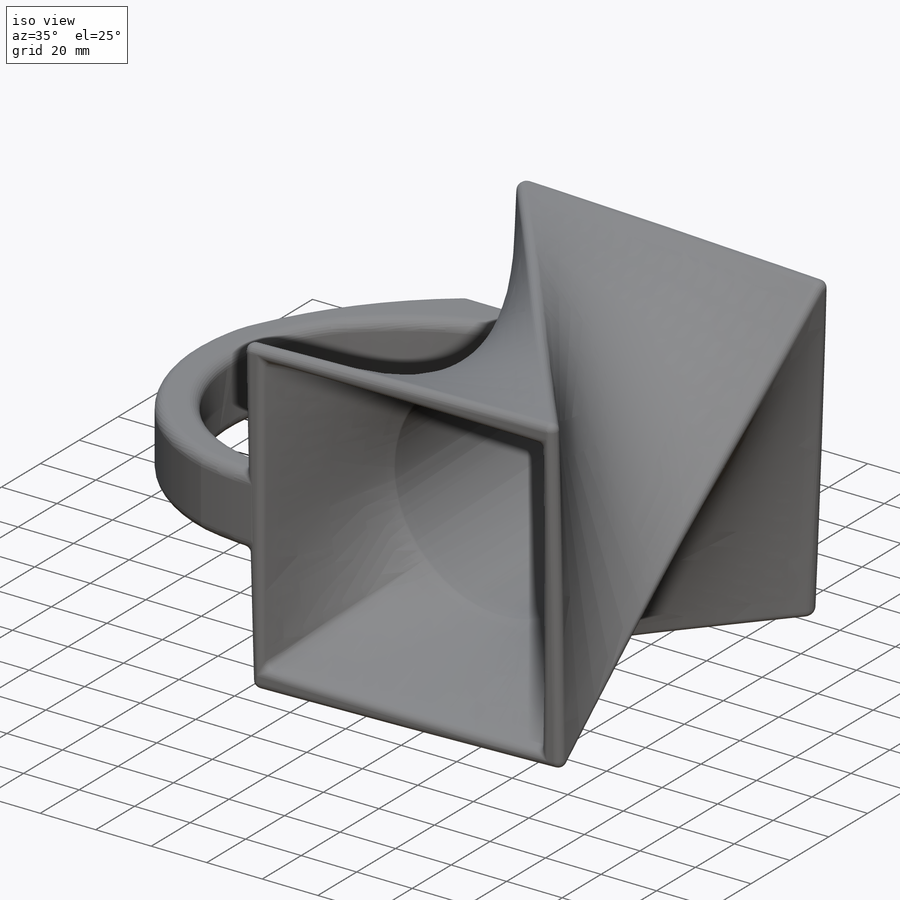
[diagram: iso view]
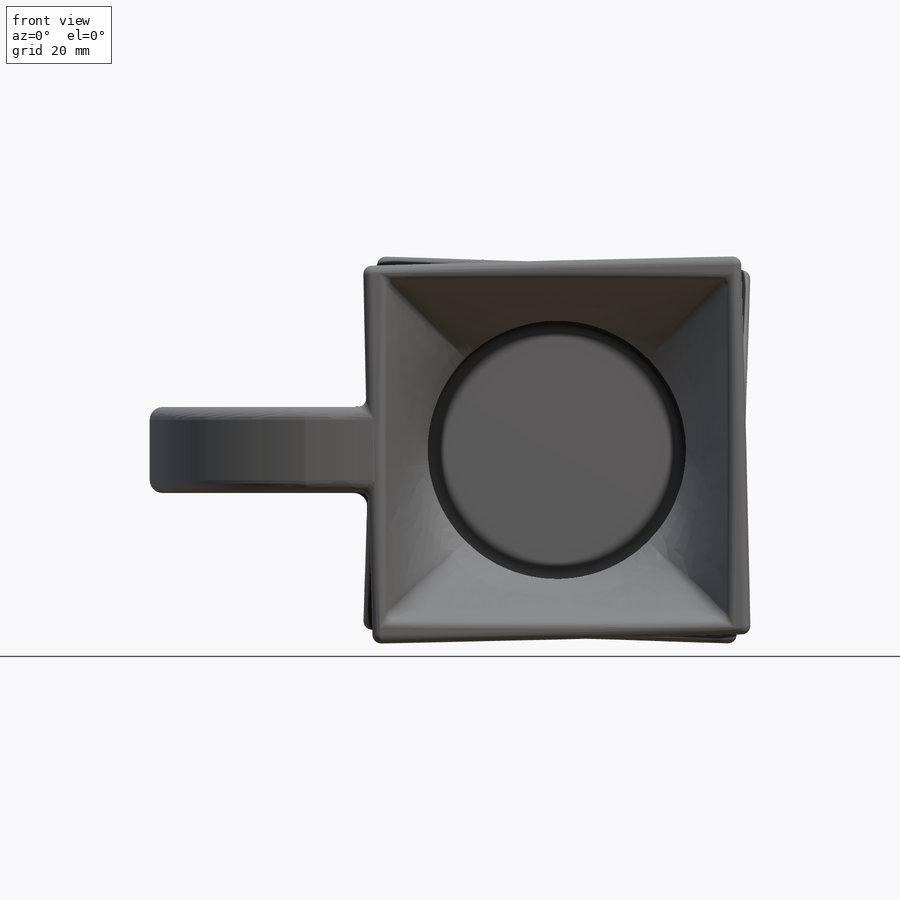
[diagram: front view]
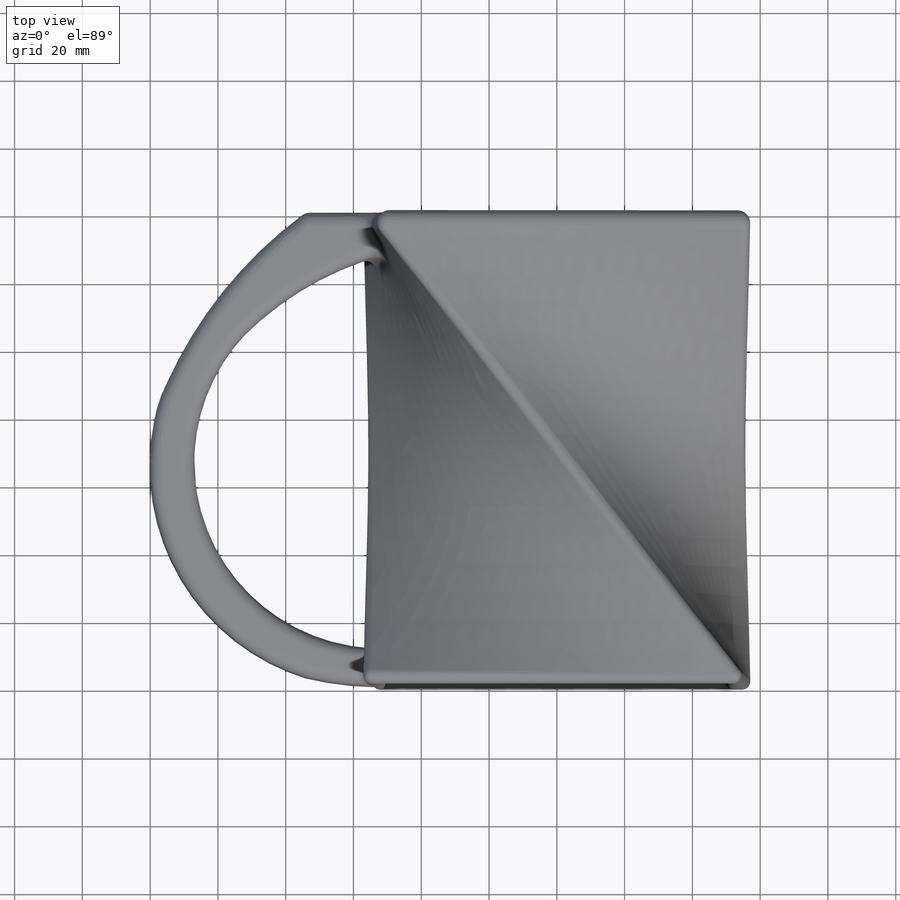
[diagram: top view]
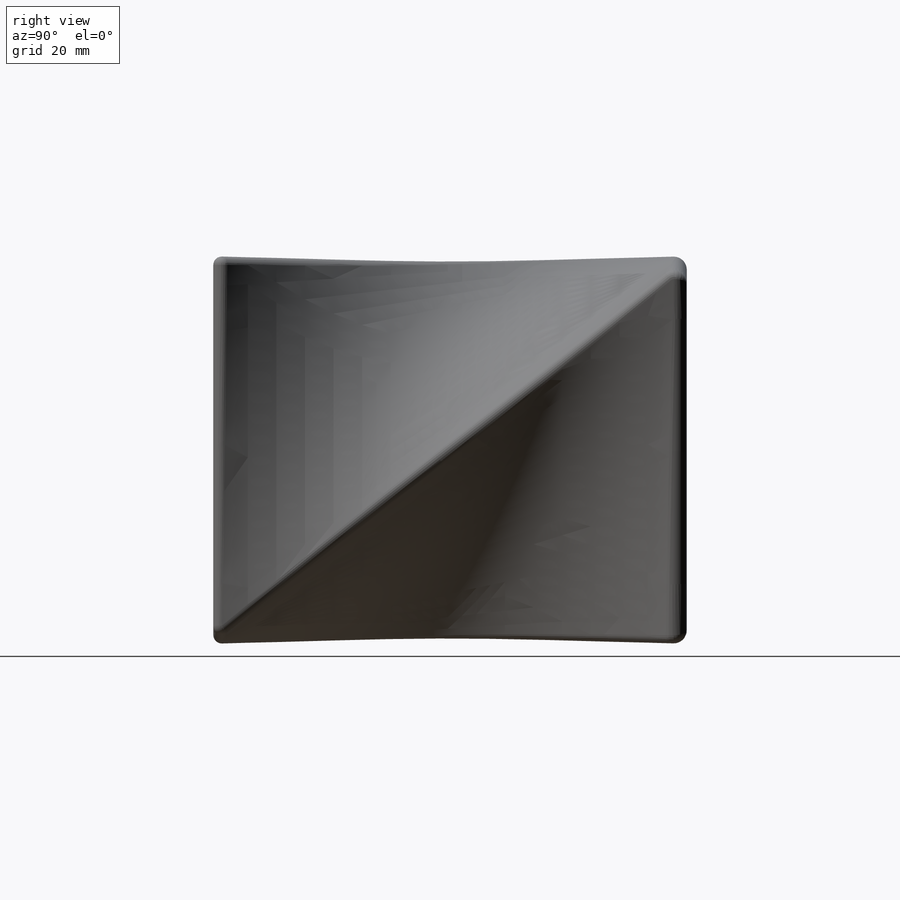
[diagram: right view]
SOLIDWORKS PART (.sldprt)
format: sldprt  version: not decoded by parser v0  size: 801,792 bytes
history: native  units: mm
features: fillet x10, sketch x5, plane x5, material x1, cut_extrude x1, extrude x1 (+13 scaffold rows collapsed)
feature tree (36):
  scaffold x13  (default folders/planes/origin — collapsed)
  material  "Material <not specified>"
  sketch  "Sketch1"  dims[D1=114.3mm D2=114.3mm D3=57.15mm D4=57.15mm]
  plane  "Plane4"
  plane  "Plane5"  Offset=139.7mm
  sketch  "Sketch4"  dims[D1=0.0mm]
  plane  "Plane6"  Offset=12.7mm
  sketch  "Sketch5"  dims[D1=31.75mm]
  cut_extrude  "Cut-Extrude1"  Depth=76.2mm
  plane  "Plane7"
  sketch  "Sketch6"  dims[D1=6.35mm D2=6.35mm D3=6.35mm D4=6.35mm]
  fillet  "Fillet1"  Radius=2.54mm
  fillet  "Fillet3"  Radius=2.54mm
  fillet  "Fillet4"  Radius=2.54mm
  fillet  "Fillet5"  Radius=2.54mm
  fillet  "Fillet6"  Radius=2.54mm
  fillet  "Fillet7"  Radius=3.81mm
  plane  "Plane8"  Offset=0mm
  sketch  "Sketch9"  dims[D1=25.4mm]
  extrude  "Boss-Extrude5"  Depth=12.7mm
  fillet  "Fillet8"  Radius=3.81mm
  fillet  "Fillet16"  Radius=3.81mm
  fillet  "Fillet18"  Radius=3.81mm
  fillet  "Fillet22"  Radius=2.54mm
decode coverage: 17 of 17 modeling features carry decoded parameters
note: suppression state not decoded; provenance and decode notes live in map.json
